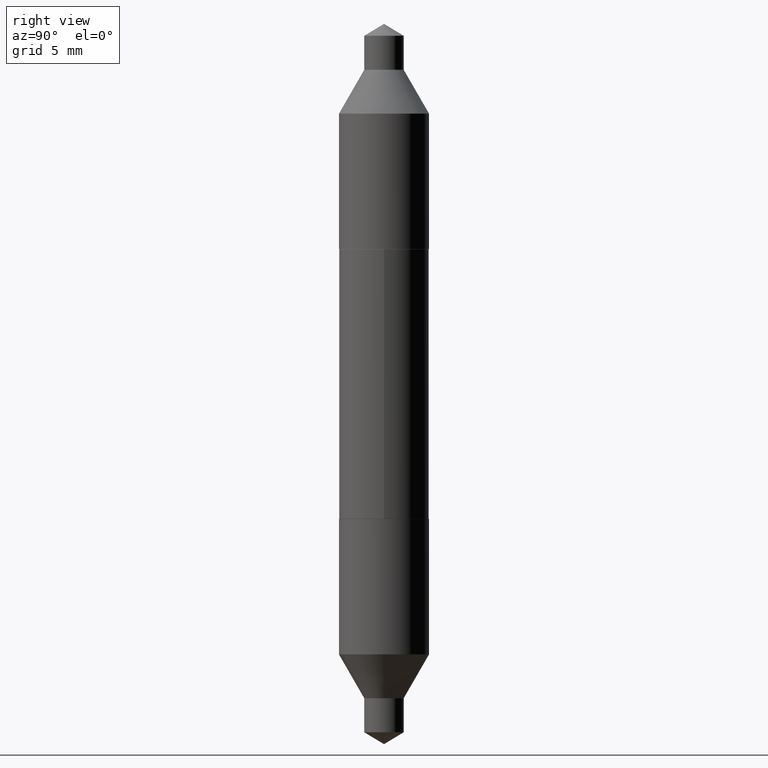
[diagram: clean part render]
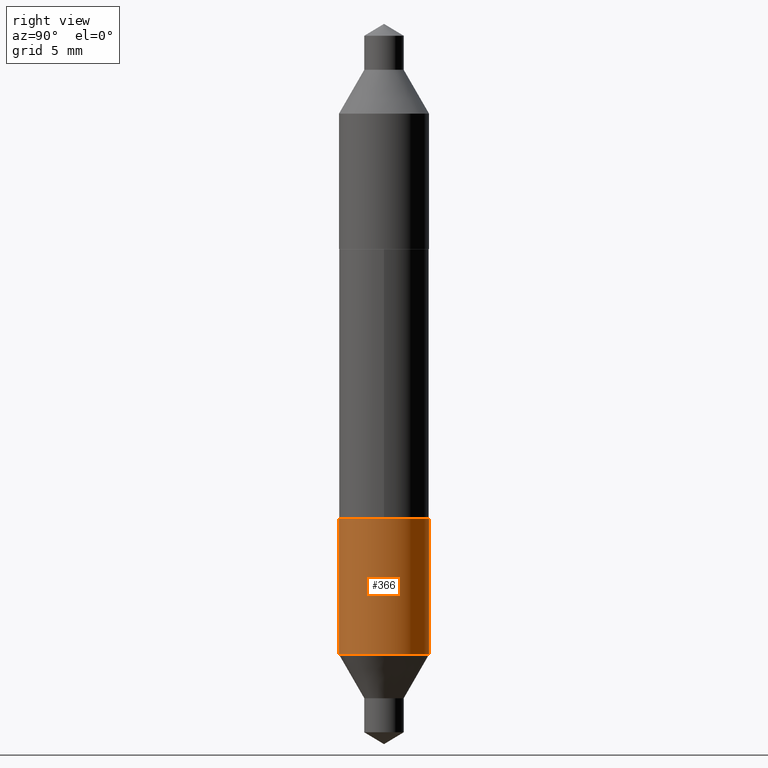
[diagram: same view with one face highlighted and labeled with its STEP entity id]
A machine part, right view. The second image highlights one B-rep face of the part: STEP entity #366.
In plain terms, the highlighted cylindrical surface (partial cylindrical patch) has radius 3.175 mm, axis along (-0, 0, 1).
Its self-contained STEP definition (entity closure, byte-faithful):
#28 = DIRECTION ( 'NONE',  ( -6.982962677686266711E-15, -1.000000000000000000, 3.278217592397114284E-15 ) ) ;
#41 = DIRECTION ( 'NONE',  ( -2.454362535592602182E-29, 3.478745012132013039E-15, 1.000000000000000000 ) ) ;
#66 = VERTEX_POINT ( 'NONE', #616 ) ;
#80 = AXIS2_PLACEMENT_3D ( 'NONE', #396, #564, #188 ) ;
#117 = AXIS2_PLACEMENT_3D ( 'NONE', #197, #41, #481 ) ;
#129 = CARTESIAN_POINT ( 'NONE',  ( -8.728703347107652936E-16, -0.1250000000000026923, -0.7508368282279057615 ) ) ;
#136 = CARTESIAN_POINT ( 'NONE',  ( 8.881784197001345015E-16, 0.1249999999999987232, -0.3750000000000003886 ) ) ;
#188 = DIRECTION ( 'NONE',  ( -6.982962677686265922E-15, -1.000000000000000000, 3.278217592397115862E-15 ) ) ;
#197 = CARTESIAN_POINT ( 'NONE',  ( 9.170508023194260837E-30, -1.309305502066179347E-15, -0.3749999999999999445 ) ) ;
#230 = DIRECTION ( 'NONE',  ( -2.454362535592602182E-29, 3.478745012132013433E-15, 1.000000000000000000 ) ) ;
#252 = CIRCLE ( 'NONE', #80, 0.1250000000000000000 ) ;
#255 = FACE_OUTER_BOUND ( 'NONE', #381, .T. ) ;
#275 = VERTEX_POINT ( 'NONE', #129 ) ;
#284 = ORIENTED_EDGE ( 'NONE', *, *, #287, .T. ) ;
#287 = EDGE_CURVE ( 'NONE', #275, #320, #372, .T. ) ;
#299 = DIRECTION ( 'NONE',  ( -2.454362535592602182E-29, 3.478745012132013433E-15, 1.000000000000000000 ) ) ;
#300 = VECTOR ( 'NONE', #299, 39.37007874015748143 ) ;
#310 = CARTESIAN_POINT ( 'NONE',  ( 8.881784197001435734E-16, 0.1249999999999986816, -0.3750000000000003886 ) ) ;
#320 = VERTEX_POINT ( 'NONE', #683 ) ;
#330 = ORIENTED_EDGE ( 'NONE', *, *, #542, .F. ) ;
#347 = CARTESIAN_POINT ( 'NONE',  ( 1.839490633017951177E-29, -2.616745993639524273E-15, -0.7508368282279060946 ) ) ;
#357 = DIRECTION ( 'NONE',  ( -2.454362535592602182E-29, 3.478745012132013039E-15, 1.000000000000000000 ) ) ;
#366 = ADVANCED_FACE ( 'NONE', ( #255 ), #587, .T. ) ;
#372 = CIRCLE ( 'NONE', #679, 0.1250000000000000555 ) ;
#381 = EDGE_LOOP ( 'NONE', ( #284, #646, #330, #661 ) ) ;
#396 = CARTESIAN_POINT ( 'NONE',  ( 9.170508023194260837E-30, -1.309305502066179347E-15, -0.3749999999999999445 ) ) ;
#419 = VERTEX_POINT ( 'NONE', #310 ) ;
#428 = VECTOR ( 'NONE', #230, 39.37007874015748143 ) ;
#481 = DIRECTION ( 'NONE',  ( -6.982962677686265922E-15, -1.000000000000000000, 3.278217592397115073E-15 ) ) ;
#499 = LINE ( 'NONE', #136, #428 ) ;
#542 = EDGE_CURVE ( 'NONE', #66, #419, #252, .T. ) ;
#564 = DIRECTION ( 'NONE',  ( -2.454362535592602182E-29, 3.478745012132013039E-15, 1.000000000000000000 ) ) ;
#587 = CYLINDRICAL_SURFACE ( 'NONE', #117, 0.1250000000000000278 ) ;
#612 = EDGE_CURVE ( 'NONE', #275, #66, #620, .T. ) ;
#616 = CARTESIAN_POINT ( 'NONE',  ( -8.728703347107739711E-16, -0.1250000000000013045, -0.3749999999999995559 ) ) ;
#620 = LINE ( 'NONE', #678, #300 ) ;
#631 = EDGE_CURVE ( 'NONE', #320, #419, #499, .T. ) ;
#646 = ORIENTED_EDGE ( 'NONE', *, *, #631, .T. ) ;
#661 = ORIENTED_EDGE ( 'NONE', *, *, #612, .F. ) ;
#678 = CARTESIAN_POINT ( 'NONE',  ( -8.728703347107742669E-16, -0.1250000000000013600, -0.3749999999999995559 ) ) ;
#679 = AXIS2_PLACEMENT_3D ( 'NONE', #347, #357, #28 ) ;
#683 = CARTESIAN_POINT ( 'NONE',  ( 8.881784197001394318E-16, 0.1249999999999974742, -0.7508368282279065387 ) ) ;